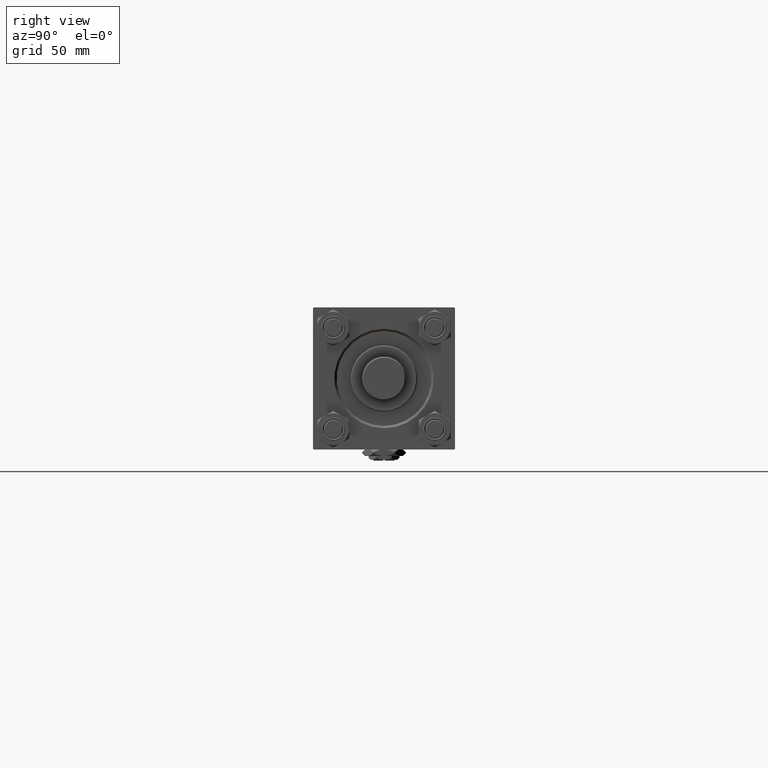
[diagram: clean part render]
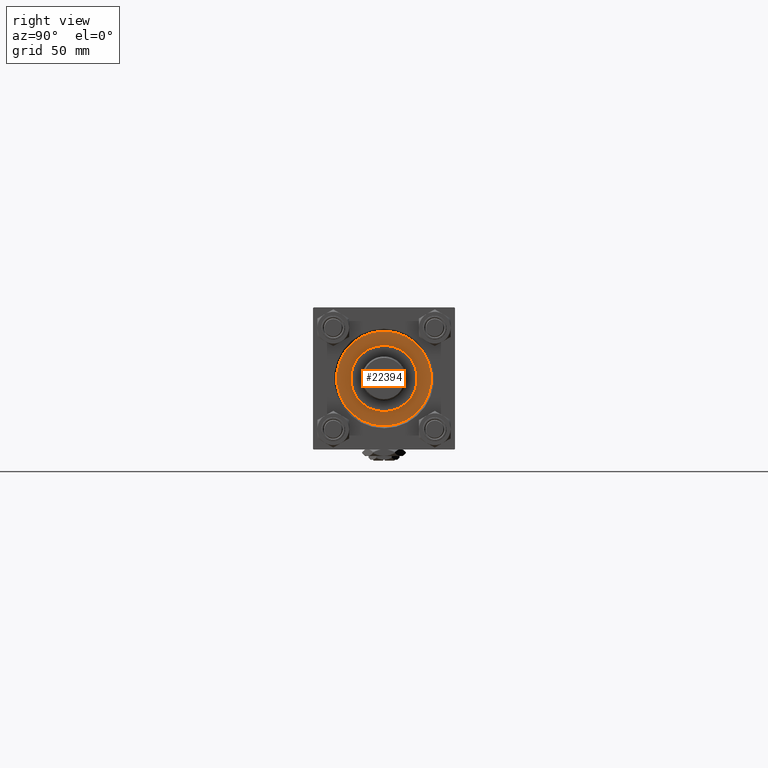
[diagram: same view with one face highlighted and labeled with its STEP entity id]
A machine part, right view. The second image highlights one B-rep face of the part: STEP entity #22394.
In plain terms, the highlighted planar face has unit normal (1, 0, -0).
Its self-contained STEP definition (entity closure, byte-faithful):
#114 = CARTESIAN_POINT ( 'NONE',  ( 0.000000000000000000, 0.000000000000000000, 28.69999999999999929 ) ) ;
#1661 = CARTESIAN_POINT ( 'NONE',  ( 0.000000000000000000, 0.000000000000000000, 28.69999999999999929 ) ) ;
#6145 = DIRECTION ( 'NONE',  ( 0.000000000000000000, 0.000000000000000000, 1.000000000000000000 ) ) ;
#7644 = VERTEX_POINT ( 'NONE', #8614 ) ;
#8473 = ORIENTED_EDGE ( 'NONE', *, *, #27345, .F. ) ;
#8614 = CARTESIAN_POINT ( 'NONE',  ( 30.00000000000000000, 3.673940397442059178E-15, 28.69999999999999929 ) ) ;
#10103 = EDGE_LOOP ( 'NONE', ( #15607, #8473 ) ) ;
#10276 = CARTESIAN_POINT ( 'NONE',  ( -21.00000000000000000, 0.000000000000000000, 28.69999999999999929 ) ) ;
#12222 = CARTESIAN_POINT ( 'NONE',  ( -30.00000000000000000, 0.000000000000000000, 28.69999999999999929 ) ) ;
#14225 = EDGE_CURVE ( 'NONE', #7644, #16561, #39765, .T. ) ;
#14466 = CIRCLE ( 'NONE', #17010, 30.00000000000000000 ) ;
#14481 = EDGE_CURVE ( 'NONE', #16561, #7644, #14466, .T. ) ;
#14588 = PLANE ( 'NONE',  #27725 ) ;
#15607 = ORIENTED_EDGE ( 'NONE', *, *, #19233, .F. ) ;
#16561 = VERTEX_POINT ( 'NONE', #12222 ) ;
#16774 = VERTEX_POINT ( 'NONE', #10276 ) ;
#16787 = DIRECTION ( 'NONE',  ( 0.000000000000000000, 0.000000000000000000, 1.000000000000000000 ) ) ;
#17010 = AXIS2_PLACEMENT_3D ( 'NONE', #48197, #32316, #51905 ) ;
#17773 = CIRCLE ( 'NONE', #28703, 21.00000000000000000 ) ;
#18334 = AXIS2_PLACEMENT_3D ( 'NONE', #46425, #41423, #37459 ) ;
#19233 = EDGE_CURVE ( 'NONE', #16774, #32413, #41130, .T. ) ;
#22394 = ADVANCED_FACE ( 'NONE', ( #34685, #50813 ), #14588, .T. ) ;
#24726 = DIRECTION ( 'NONE',  ( 1.000000000000000000, 0.000000000000000000, 0.000000000000000000 ) ) ;
#27345 = EDGE_CURVE ( 'NONE', #32413, #16774, #17773, .T. ) ;
#27725 = AXIS2_PLACEMENT_3D ( 'NONE', #34417, #42626, #30704 ) ;
#28703 = AXIS2_PLACEMENT_3D ( 'NONE', #1661, #6145, #46355 ) ;
#28846 = CARTESIAN_POINT ( 'NONE',  ( 21.00000000000000000, 2.571758278209441661E-15, 28.69999999999999929 ) ) ;
#30704 = DIRECTION ( 'NONE',  ( 1.000000000000000000, 0.000000000000000000, -0.000000000000000000 ) ) ;
#31023 = ORIENTED_EDGE ( 'NONE', *, *, #14481, .T. ) ;
#32316 = DIRECTION ( 'NONE',  ( 0.000000000000000000, 0.000000000000000000, 1.000000000000000000 ) ) ;
#32413 = VERTEX_POINT ( 'NONE', #28846 ) ;
#34417 = CARTESIAN_POINT ( 'NONE',  ( 0.000000000000000000, 0.000000000000000000, 28.69999999999999929 ) ) ;
#34685 = FACE_BOUND ( 'NONE', #10103, .T. ) ;
#36312 = ORIENTED_EDGE ( 'NONE', *, *, #14225, .T. ) ;
#36370 = AXIS2_PLACEMENT_3D ( 'NONE', #114, #16787, #24726 ) ;
#37459 = DIRECTION ( 'NONE',  ( 1.000000000000000000, 0.000000000000000000, 0.000000000000000000 ) ) ;
#39765 = CIRCLE ( 'NONE', #36370, 30.00000000000000000 ) ;
#41130 = CIRCLE ( 'NONE', #18334, 21.00000000000000000 ) ;
#41423 = DIRECTION ( 'NONE',  ( 0.000000000000000000, 0.000000000000000000, 1.000000000000000000 ) ) ;
#42626 = DIRECTION ( 'NONE',  ( 0.000000000000000000, 0.000000000000000000, 1.000000000000000000 ) ) ;
#46355 = DIRECTION ( 'NONE',  ( 1.000000000000000000, 0.000000000000000000, 0.000000000000000000 ) ) ;
#46425 = CARTESIAN_POINT ( 'NONE',  ( 0.000000000000000000, 0.000000000000000000, 28.69999999999999929 ) ) ;
#46798 = EDGE_LOOP ( 'NONE', ( #31023, #36312 ) ) ;
#48197 = CARTESIAN_POINT ( 'NONE',  ( 0.000000000000000000, 0.000000000000000000, 28.69999999999999929 ) ) ;
#50813 = FACE_OUTER_BOUND ( 'NONE', #46798, .T. ) ;
#51905 = DIRECTION ( 'NONE',  ( 1.000000000000000000, 0.000000000000000000, 0.000000000000000000 ) ) ;